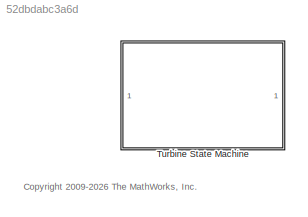
MODEL slx_52dbdabc3a6d
KIND library
CONFIG EnableMultiTasking = on
CONFIG SolverName = ode45
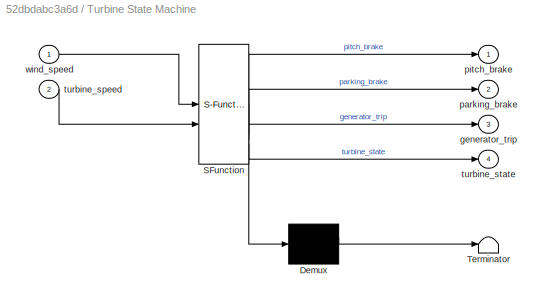
BLOCK [SubSystem] Turbine State Machine
  ErrorFcn = Stateflow.Translate.translate
  PermitHierarchicalResolution = ExplicitOnly
  SFBlockType = Chart
  TreatAsAtomicUnit = on
BLOCK [Demux] Turbine State Machine/ Demux 
  Outputs = 1
BLOCK [S-Function] Turbine State Machine/ SFunction 
  EnableBusSupport = off
  FunctionName = sf_sfun
  PortCounts = [2 5]
  SFcnIsStateOwnerBlock = off
  SFunctionDeploymentMode = off
  Tag = Stateflow S-Function 1
BLOCK [Terminator] Turbine State Machine/ Terminator 
BLOCK [Outport] Turbine State Machine/generator_trip
  Port = 3
  VectorParamsAs1DForOutWhenUnconnected = off
BLOCK [Outport] Turbine State Machine/parking_brake
  Port = 2
  VectorParamsAs1DForOutWhenUnconnected = off
BLOCK [Outport] Turbine State Machine/pitch_brake
  VectorParamsAs1DForOutWhenUnconnected = off
BLOCK [Inport] Turbine State Machine/turbine_speed
  Port = 2
BLOCK [Outport] Turbine State Machine/turbine_state
  Port = 4
  VectorParamsAs1DForOutWhenUnconnected = off
BLOCK [Inport] Turbine State Machine/wind_speed
ANNOTATION (root): <copyright redacted>
CHART Turbine State Machine states=4 transitions=7
  STATE_LABEL 'Generating\nentry: parking_brake = 0;\n          generator_trip = 0;\n          pitch_brake = 0;\n          turbine_state = 2;'
  STATE_LABEL 'Startup\nentry: parking_brake = 0;\n          generator_trip = 1;\n          pitch_brake = 0;\n          turbine_state = 1;'
  STATE_LABEL 'Park\nentry: parking_brake = 1;\n          generator_trip = 1;\n          pitch_brake = 1;\n          turbine_state = 0;'
  STATE_LABEL 'Brake\nentry: parking_brake = 0;\n          generator_trip = 1;\n          pitch_brake = 1;\n          turbine_state = 3;'
CHART  states=0 transitions=0
